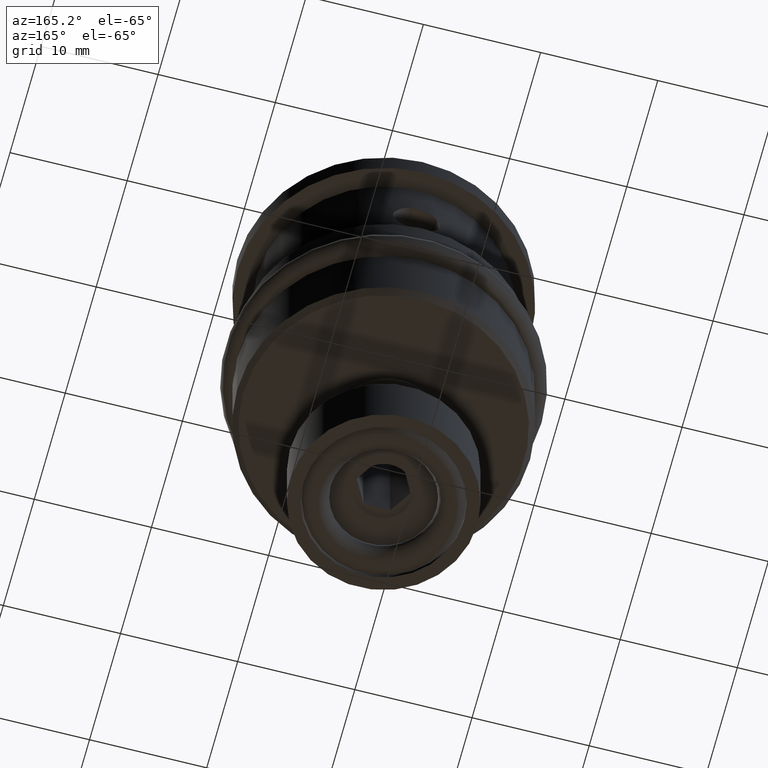
[diagram: clean part render]
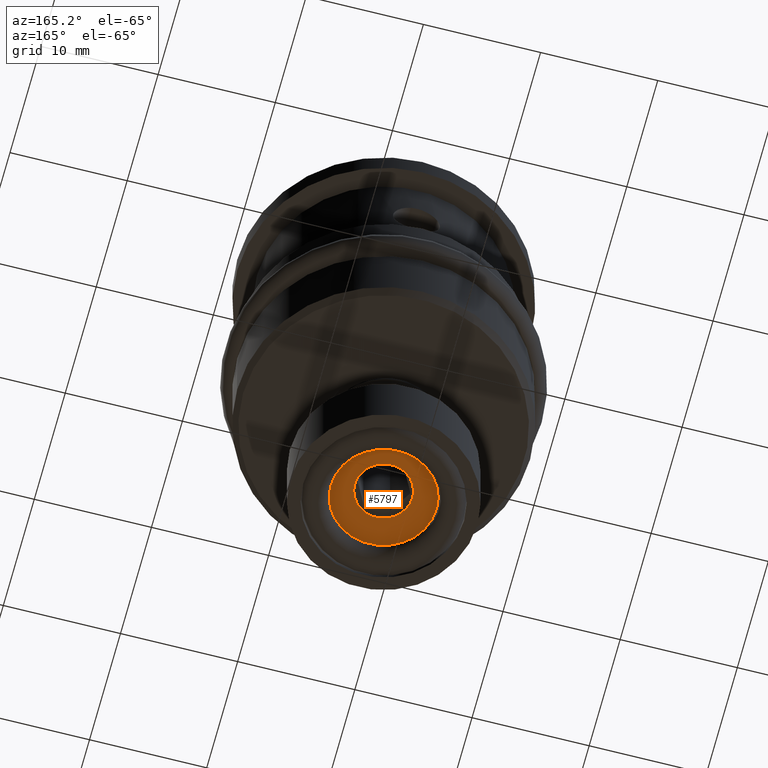
[diagram: same view with one face highlighted and labeled with its STEP entity id]
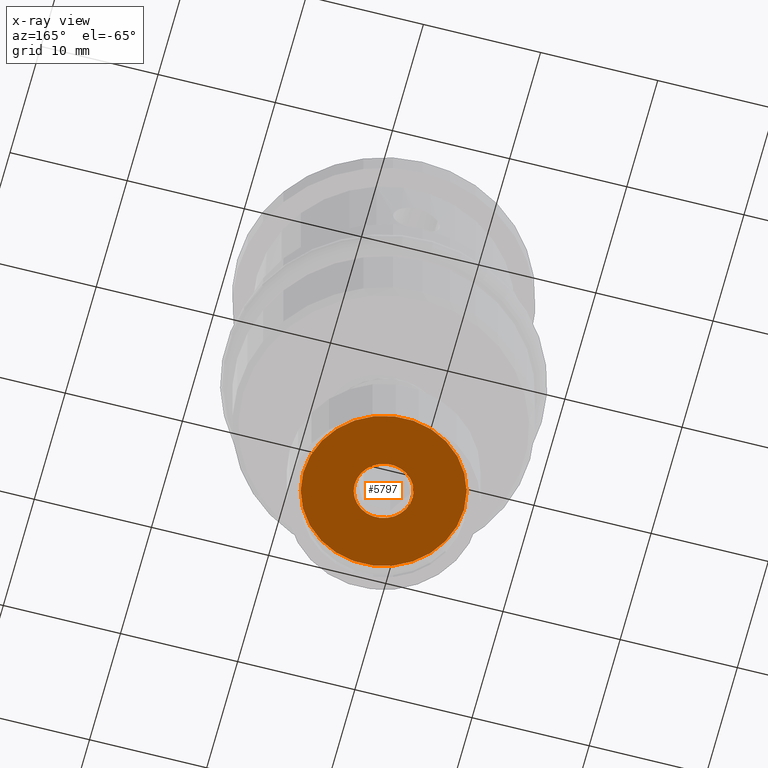
[diagram: x-ray of the same camera — body ghosted, the highlighted face saturated]
A machine part, auxiliary view. The second image highlights one B-rep face of the part: STEP entity #5797.
The next image is the same camera in x-ray: the body ghosted, the highlighted face saturated — about 0% of this face is hidden behind the body in this view.
In plain terms, the highlighted planar face has unit normal (0, 0, -1).
Its self-contained STEP definition (entity closure, byte-faithful):
#854 = CARTESIAN_POINT ( 'NONE',  ( 0.0000000000000000000, 2.200000000000000622, 0.0000000000000000000 ) ) ;
#1157 = AXIS2_PLACEMENT_3D ( 'NONE', #854, #5684, #3224 ) ;
#1723 = CARTESIAN_POINT ( 'NONE',  ( 0.0000000000000000000, 2.200000000000000622, 0.0000000000000000000 ) ) ;
#1725 = EDGE_LOOP ( 'NONE', ( #1996 ) ) ;
#1996 = ORIENTED_EDGE ( 'NONE', *, *, #4721, .F. ) ;
#2131 = PLANE ( 'NONE',  #5667 ) ;
#2603 = DIRECTION ( 'NONE',  ( 0.0000000000000000000, -1.000000000000000000, 0.0000000000000000000 ) ) ;
#2641 = DIRECTION ( 'NONE',  ( 0.0000000000000000000, 0.0000000000000000000, -1.000000000000000000 ) ) ;
#2662 = CARTESIAN_POINT ( 'NONE',  ( 0.0000000000000000000, 2.200000000000000622, -2.471124302832961028 ) ) ;
#2763 = CIRCLE ( 'NONE', #1157, 6.850000000000039613 ) ;
#3087 = DIRECTION ( 'NONE',  ( 0.0000000000000000000, -1.000000000000000000, 0.0000000000000000000 ) ) ;
#3138 = CARTESIAN_POINT ( 'NONE',  ( 0.0000000000000000000, 2.200000000000000622, -6.850000000000039613 ) ) ;
#3168 = FACE_OUTER_BOUND ( 'NONE', #6233, .T. ) ;
#3224 = DIRECTION ( 'NONE',  ( 0.0000000000000000000, 0.0000000000000000000, -1.000000000000000000 ) ) ;
#3639 = VERTEX_POINT ( 'NONE', #3138 ) ;
#3641 = DIRECTION ( 'NONE',  ( 0.0000000000000000000, 0.0000000000000000000, -1.000000000000000000 ) ) ;
#3873 = EDGE_CURVE ( 'NONE', #3639, #3639, #2763, .T. ) ;
#4022 = CARTESIAN_POINT ( 'NONE',  ( 0.0000000000000000000, 2.200000000000000622, 0.0000000000000000000 ) ) ;
#4426 = ORIENTED_EDGE ( 'NONE', *, *, #3873, .T. ) ;
#4663 = CIRCLE ( 'NONE', #5473, 2.471124302832961028 ) ;
#4721 = EDGE_CURVE ( 'NONE', #6032, #6032, #4663, .T. ) ;
#5026 = FACE_BOUND ( 'NONE', #1725, .T. ) ;
#5473 = AXIS2_PLACEMENT_3D ( 'NONE', #1723, #3087, #2641 ) ;
#5667 = AXIS2_PLACEMENT_3D ( 'NONE', #4022, #2603, #3641 ) ;
#5684 = DIRECTION ( 'NONE',  ( 0.0000000000000000000, -1.000000000000000000, 0.0000000000000000000 ) ) ;
#5797 = ADVANCED_FACE ( 'NONE', ( #5026, #3168 ), #2131, .T. ) ;
#6032 = VERTEX_POINT ( 'NONE', #2662 ) ;
#6233 = EDGE_LOOP ( 'NONE', ( #4426 ) ) ;